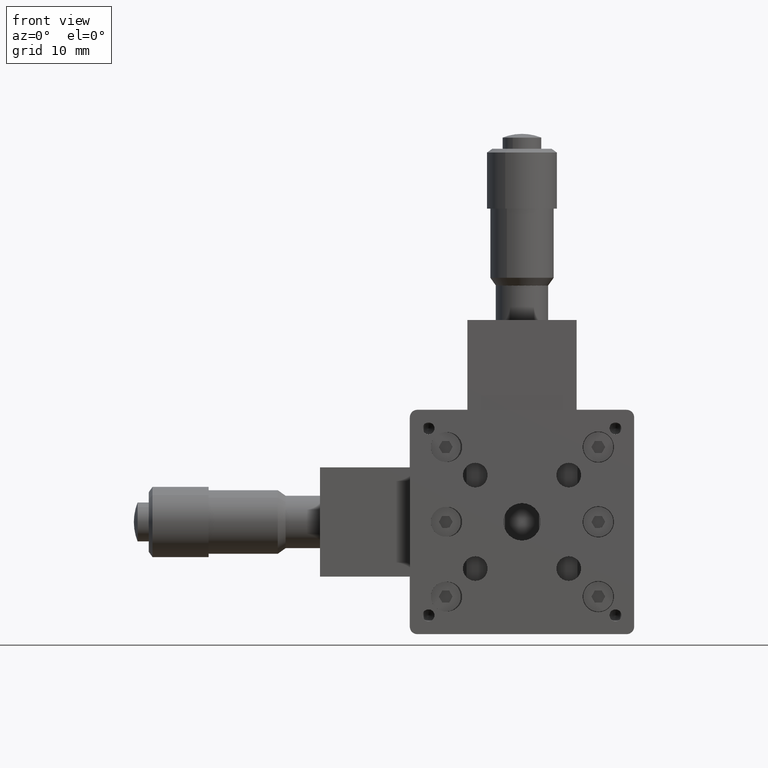
[diagram: clean part render]
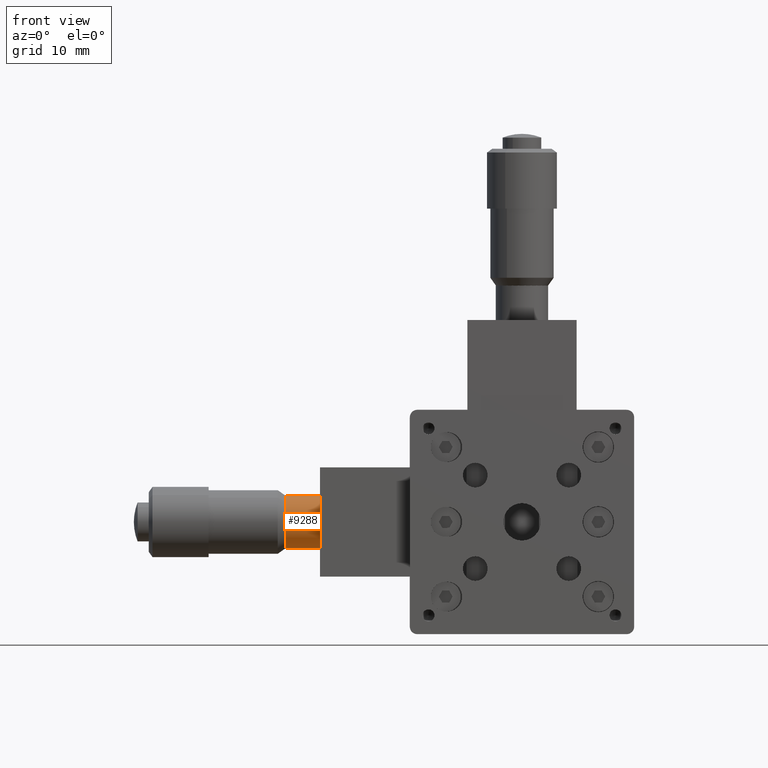
[diagram: same view with one face highlighted and labeled with its STEP entity id]
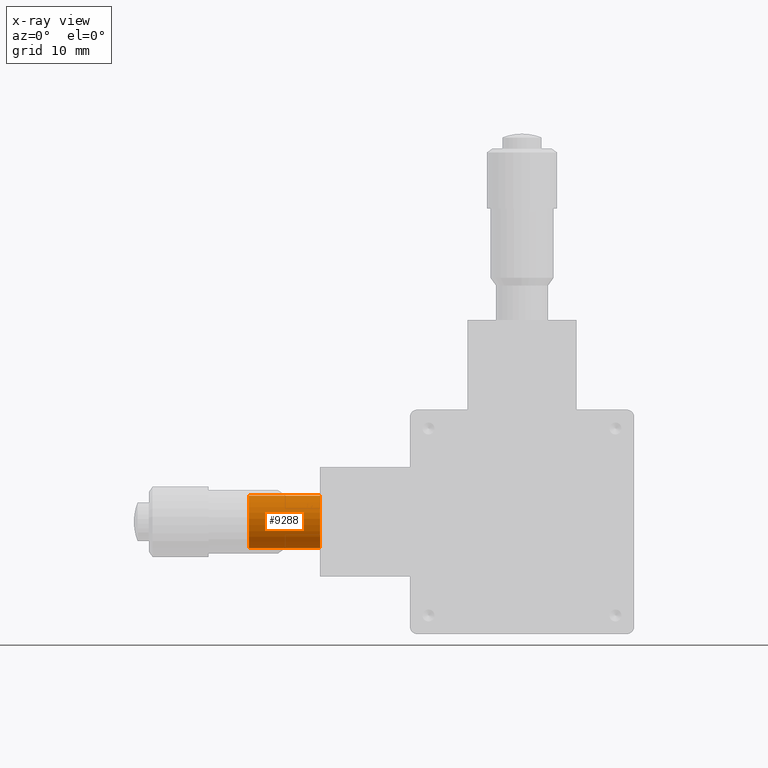
[diagram: x-ray of the same camera — body ghosted, the highlighted face saturated]
A machine part, front view. The second image highlights one B-rep face of the part: STEP entity #9288.
The next image is the same camera in x-ray: the body ghosted, the highlighted face saturated — about 0% of this face is hidden behind the body in this view.
In plain terms, the highlighted cylindrical surface (edge-blend (fillet) strip) has radius 3.5 mm, axis along (-1, 0, -0).
Its self-contained STEP definition (entity closure, byte-faithful):
#738 = LINE ( 'NONE', #28680, #10246 ) ;
#1619 = CARTESIAN_POINT ( 'NONE',  ( -36.50000000000000700, 18.80000000000001100, 3.499999999999994200 ) ) ;
#2851 = DIRECTION ( 'NONE',  ( 0.0000000000000000000, 0.0000000000000000000, 1.000000000000000000 ) ) ;
#3247 = ORIENTED_EDGE ( 'NONE', *, *, #20669, .T. ) ;
#3888 = CARTESIAN_POINT ( 'NONE',  ( -27.00000000000000700, 18.80000000000001100, -3.500000000000003600 ) ) ;
#7269 = VERTEX_POINT ( 'NONE', #3888 ) ;
#9288 = ADVANCED_FACE ( 'NONE', ( #46312 ), #54406, .T. ) ;
#10246 = VECTOR ( 'NONE', #28125, 1000.000000000000000 ) ;
#11765 = DIRECTION ( 'NONE',  ( -1.000000000000000000, 1.387778780781434900E-017, -4.163336342344252000E-017 ) ) ;
#14729 = CARTESIAN_POINT ( 'NONE',  ( -92.04102306920762500, 18.80000000000001100, -7.011030023338684000E-015 ) ) ;
#14820 = AXIS2_PLACEMENT_3D ( 'NONE', #14729, #11765, #42140 ) ;
#16273 = EDGE_CURVE ( 'NONE', #7269, #45197, #738, .T. ) ;
#19235 = CARTESIAN_POINT ( 'NONE',  ( -36.50000000000000700, 18.80000000000001100, -3.500000000000004000 ) ) ;
#19756 = VERTEX_POINT ( 'NONE', #1619 ) ;
#20669 = EDGE_CURVE ( 'NONE', #7269, #53950, #42485, .T. ) ;
#21368 = DIRECTION ( 'NONE',  ( -1.000000000000000000, 1.387778780781434900E-017, -4.163336342344252000E-017 ) ) ;
#24467 = EDGE_LOOP ( 'NONE', ( #56156, #3247, #49958, #30417 ) ) ;
#24986 = AXIS2_PLACEMENT_3D ( 'NONE', #52070, #21368, #51700 ) ;
#28125 = DIRECTION ( 'NONE',  ( -1.000000000000000000, 1.387778780781434900E-017, -4.163336342344252000E-017 ) ) ;
#28680 = CARTESIAN_POINT ( 'NONE',  ( -92.04102306920762500, 18.80000000000001100, -3.500000000000028900 ) ) ;
#30417 = ORIENTED_EDGE ( 'NONE', *, *, #54464, .F. ) ;
#31945 = VECTOR ( 'NONE', #45955, 1000.000000000000000 ) ;
#33285 = LINE ( 'NONE', #44643, #31945 ) ;
#36098 = CARTESIAN_POINT ( 'NONE',  ( -36.50000000000000700, 18.80000000000001100, -4.698670424988548300E-015 ) ) ;
#40114 = CARTESIAN_POINT ( 'NONE',  ( -27.00000000000000700, 18.80000000000001100, 3.499999999999994700 ) ) ;
#42140 = DIRECTION ( 'NONE',  ( 0.0000000000000000000, 0.0000000000000000000, 1.000000000000000000 ) ) ;
#42485 = CIRCLE ( 'NONE', #24986, 3.500000000000021800 ) ;
#44643 = CARTESIAN_POINT ( 'NONE',  ( -92.04102306920762500, 18.80000000000001100, 3.500000000000014700 ) ) ;
#44911 = DIRECTION ( 'NONE',  ( -1.000000000000000000, 1.387778780781434900E-017, -4.163336342344252000E-017 ) ) ;
#45197 = VERTEX_POINT ( 'NONE', #19235 ) ;
#45955 = DIRECTION ( 'NONE',  ( -1.000000000000000000, 1.387778780781434900E-017, -4.163336342344252000E-017 ) ) ;
#46312 = FACE_OUTER_BOUND ( 'NONE', #24467, .T. ) ;
#46946 = CIRCLE ( 'NONE', #48353, 3.500000000000021800 ) ;
#48353 = AXIS2_PLACEMENT_3D ( 'NONE', #36098, #44911, #2851 ) ;
#49612 = EDGE_CURVE ( 'NONE', #53950, #19756, #33285, .T. ) ;
#49958 = ORIENTED_EDGE ( 'NONE', *, *, #49612, .T. ) ;
#51700 = DIRECTION ( 'NONE',  ( 0.0000000000000000000, 0.0000000000000000000, 1.000000000000000000 ) ) ;
#52070 = CARTESIAN_POINT ( 'NONE',  ( -27.00000000000000700, 18.80000000000001100, -4.303153472465832400E-015 ) ) ;
#53950 = VERTEX_POINT ( 'NONE', #40114 ) ;
#54406 = CYLINDRICAL_SURFACE ( 'NONE', #14820, 3.500000000000021800 ) ;
#54464 = EDGE_CURVE ( 'NONE', #45197, #19756, #46946, .T. ) ;
#56156 = ORIENTED_EDGE ( 'NONE', *, *, #16273, .F. ) ;